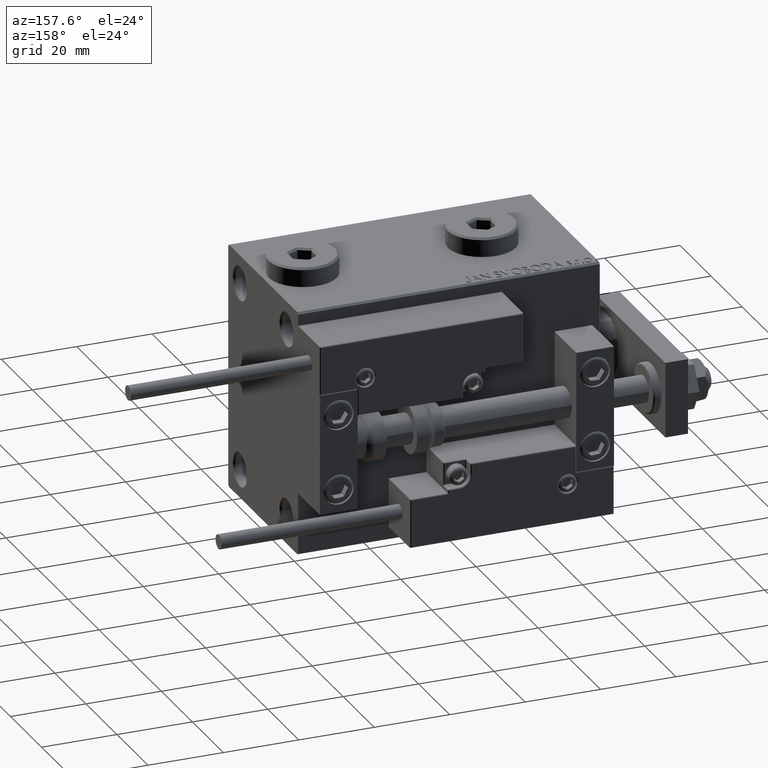
[diagram: clean part render]
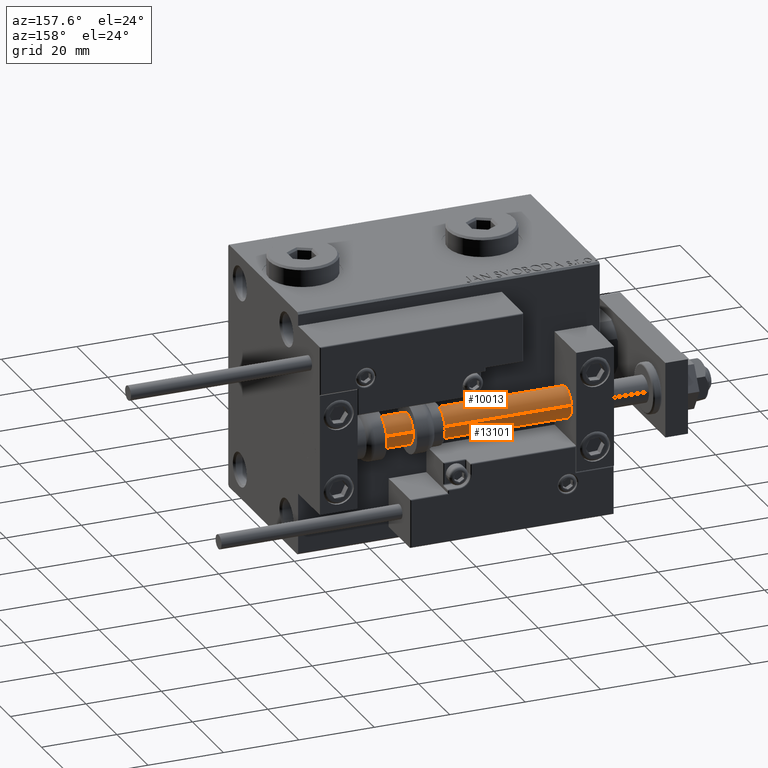
[diagram: same view with one multi-face feature highlighted, each face labeled with its STEP entity id]
A machine part, auxiliary view. The highlighted faces form ONE feature: a constant-radius fillet chain: 2 tangent blend faces with common blend radius 4 mm. The faces share edges in the B-rep.
Their STEP definitions:
[1] entity #13101 (Cylinder):
#1666 = CARTESIAN_POINT ( 'NONE',  ( 0.000000000000000000, 0.000000000000000000, 2.000000000000029310 ) ) ;
#1968 = ORIENTED_EDGE ( 'NONE', *, *, #21175, .T. ) ;
#4016 = DIRECTION ( 'NONE',  ( -0.000000000000000000, -0.000000000000000000, -1.000000000000000000 ) ) ;
#4877 = DIRECTION ( 'NONE',  ( -0.000000000000000000, -0.000000000000000000, -1.000000000000000000 ) ) ;
#9593 = EDGE_CURVE ( 'NONE', #18523, #47740, #36720, .T. ) ;
#11657 = DIRECTION ( 'NONE',  ( 1.000000000000000000, 0.000000000000000000, 0.000000000000000000 ) ) ;
#11709 = DIRECTION ( 'NONE',  ( 1.000000000000000000, 0.000000000000000000, 0.000000000000000000 ) ) ;
#12485 = ORIENTED_EDGE ( 'NONE', *, *, #18369, .F. ) ;
#13101 = ADVANCED_FACE ( 'NONE', ( #26875 ), #43603, .T. ) ;
#14467 = CARTESIAN_POINT ( 'NONE',  ( -4.000000000000000000, 0.000000000000000000, 2.000000000000029310 ) ) ;
#16249 = CARTESIAN_POINT ( 'NONE',  ( 4.000000000000000000, 4.898587196589412829E-16, 80.00000000000000000 ) ) ;
#17388 = CARTESIAN_POINT ( 'NONE',  ( -4.000000000000000000, 0.000000000000000000, 80.00000000000000000 ) ) ;
#18369 = EDGE_CURVE ( 'NONE', #34327, #18523, #43919, .T. ) ;
#18523 = VERTEX_POINT ( 'NONE', #41205 ) ;
#18796 = ORIENTED_EDGE ( 'NONE', *, *, #9593, .F. ) ;
#20092 = CARTESIAN_POINT ( 'NONE',  ( -4.000000000000000000, 0.000000000000000000, 80.00000000000000000 ) ) ;
#21175 = EDGE_CURVE ( 'NONE', #34327, #43720, #21366, .T. ) ;
#21366 = LINE ( 'NONE', #17388, #51718 ) ;
#21552 = ORIENTED_EDGE ( 'NONE', *, *, #46138, .T. ) ;
#23559 = AXIS2_PLACEMENT_3D ( 'NONE', #27685, #39919, #11709 ) ;
#24189 = VECTOR ( 'NONE', #4016, 1000.000000000000000 ) ;
#26344 = CARTESIAN_POINT ( 'NONE',  ( 4.000000000000000000, 4.898587196589412829E-16, 2.000000000000029310 ) ) ;
#26875 = FACE_OUTER_BOUND ( 'NONE', #27191, .T. ) ;
#27191 = EDGE_LOOP ( 'NONE', ( #18796, #12485, #1968, #21552 ) ) ;
#27393 = CARTESIAN_POINT ( 'NONE',  ( 0.000000000000000000, 0.000000000000000000, 80.00000000000000000 ) ) ;
#27685 = CARTESIAN_POINT ( 'NONE',  ( 0.000000000000000000, 0.000000000000000000, 80.00000000000000000 ) ) ;
#29798 = CIRCLE ( 'NONE', #35748, 4.000000000000000000 ) ;
#30111 = DIRECTION ( 'NONE',  ( -0.000000000000000000, -0.000000000000000000, 1.000000000000000000 ) ) ;
#30307 = AXIS2_PLACEMENT_3D ( 'NONE', #27393, #34834, #35883 ) ;
#34327 = VERTEX_POINT ( 'NONE', #20092 ) ;
#34834 = DIRECTION ( 'NONE',  ( -0.000000000000000000, -0.000000000000000000, -1.000000000000000000 ) ) ;
#35748 = AXIS2_PLACEMENT_3D ( 'NONE', #1666, #30111, #11657 ) ;
#35883 = DIRECTION ( 'NONE',  ( -1.000000000000000000, 0.000000000000000000, 0.000000000000000000 ) ) ;
#36720 = LINE ( 'NONE', #16249, #24189 ) ;
#39919 = DIRECTION ( 'NONE',  ( 0.000000000000000000, 0.000000000000000000, 1.000000000000000000 ) ) ;
#41205 = CARTESIAN_POINT ( 'NONE',  ( 4.000000000000000000, 4.898587196589412829E-16, 80.00000000000000000 ) ) ;
#43603 = CYLINDRICAL_SURFACE ( 'NONE', #30307, 4.000000000000000000 ) ;
#43720 = VERTEX_POINT ( 'NONE', #14467 ) ;
#43919 = CIRCLE ( 'NONE', #23559, 4.000000000000000000 ) ;
#46138 = EDGE_CURVE ( 'NONE', #43720, #47740, #29798, .T. ) ;
#47740 = VERTEX_POINT ( 'NONE', #26344 ) ;
#51718 = VECTOR ( 'NONE', #4877, 1000.000000000000000 ) ;
[2] entity #10013 (Cylinder):
#269 = CIRCLE ( 'NONE', #48637, 4.000000000000000000 ) ;
#1563 = DIRECTION ( 'NONE',  ( -1.000000000000000000, 0.000000000000000000, 0.000000000000000000 ) ) ;
#3682 = ORIENTED_EDGE ( 'NONE', *, *, #9593, .T. ) ;
#4016 = DIRECTION ( 'NONE',  ( -0.000000000000000000, -0.000000000000000000, -1.000000000000000000 ) ) ;
#4877 = DIRECTION ( 'NONE',  ( -0.000000000000000000, -0.000000000000000000, -1.000000000000000000 ) ) ;
#6778 = AXIS2_PLACEMENT_3D ( 'NONE', #51617, #35647, #47867 ) ;
#6879 = EDGE_CURVE ( 'NONE', #18523, #34327, #269, .T. ) ;
#7915 = AXIS2_PLACEMENT_3D ( 'NONE', #37991, #49410, #1563 ) ;
#9593 = EDGE_CURVE ( 'NONE', #18523, #47740, #36720, .T. ) ;
#10013 = ADVANCED_FACE ( 'NONE', ( #19658 ), #35887, .T. ) ;
#10618 = DIRECTION ( 'NONE',  ( 1.000000000000000000, 0.000000000000000000, 0.000000000000000000 ) ) ;
#13739 = ORIENTED_EDGE ( 'NONE', *, *, #21175, .F. ) ;
#14076 = DIRECTION ( 'NONE',  ( 0.000000000000000000, 0.000000000000000000, 1.000000000000000000 ) ) ;
#14467 = CARTESIAN_POINT ( 'NONE',  ( -4.000000000000000000, 0.000000000000000000, 2.000000000000029310 ) ) ;
#16249 = CARTESIAN_POINT ( 'NONE',  ( 4.000000000000000000, 4.898587196589412829E-16, 80.00000000000000000 ) ) ;
#17388 = CARTESIAN_POINT ( 'NONE',  ( -4.000000000000000000, 0.000000000000000000, 80.00000000000000000 ) ) ;
#18523 = VERTEX_POINT ( 'NONE', #41205 ) ;
#19658 = FACE_OUTER_BOUND ( 'NONE', #40486, .T. ) ;
#20092 = CARTESIAN_POINT ( 'NONE',  ( -4.000000000000000000, 0.000000000000000000, 80.00000000000000000 ) ) ;
#21175 = EDGE_CURVE ( 'NONE', #34327, #43720, #21366, .T. ) ;
#21366 = LINE ( 'NONE', #17388, #51718 ) ;
#23354 = EDGE_CURVE ( 'NONE', #47740, #43720, #29694, .T. ) ;
#24189 = VECTOR ( 'NONE', #4016, 1000.000000000000000 ) ;
#26344 = CARTESIAN_POINT ( 'NONE',  ( 4.000000000000000000, 4.898587196589412829E-16, 2.000000000000029310 ) ) ;
#27805 = ORIENTED_EDGE ( 'NONE', *, *, #23354, .T. ) ;
#29694 = CIRCLE ( 'NONE', #6778, 4.000000000000000000 ) ;
#34327 = VERTEX_POINT ( 'NONE', #20092 ) ;
#35647 = DIRECTION ( 'NONE',  ( -0.000000000000000000, -0.000000000000000000, 1.000000000000000000 ) ) ;
#35887 = CYLINDRICAL_SURFACE ( 'NONE', #7915, 4.000000000000000000 ) ;
#36720 = LINE ( 'NONE', #16249, #24189 ) ;
#37991 = CARTESIAN_POINT ( 'NONE',  ( 0.000000000000000000, 0.000000000000000000, 80.00000000000000000 ) ) ;
#40486 = EDGE_LOOP ( 'NONE', ( #40816, #3682, #27805, #13739 ) ) ;
#40816 = ORIENTED_EDGE ( 'NONE', *, *, #6879, .F. ) ;
#41205 = CARTESIAN_POINT ( 'NONE',  ( 4.000000000000000000, 4.898587196589412829E-16, 80.00000000000000000 ) ) ;
#41997 = CARTESIAN_POINT ( 'NONE',  ( 0.000000000000000000, 0.000000000000000000, 80.00000000000000000 ) ) ;
#43720 = VERTEX_POINT ( 'NONE', #14467 ) ;
#47740 = VERTEX_POINT ( 'NONE', #26344 ) ;
#47867 = DIRECTION ( 'NONE',  ( 1.000000000000000000, 0.000000000000000000, 0.000000000000000000 ) ) ;
#48637 = AXIS2_PLACEMENT_3D ( 'NONE', #41997, #14076, #10618 ) ;
#49410 = DIRECTION ( 'NONE',  ( -0.000000000000000000, -0.000000000000000000, -1.000000000000000000 ) ) ;
#51617 = CARTESIAN_POINT ( 'NONE',  ( 0.000000000000000000, 0.000000000000000000, 2.000000000000029310 ) ) ;
#51718 = VECTOR ( 'NONE', #4877, 1000.000000000000000 ) ;